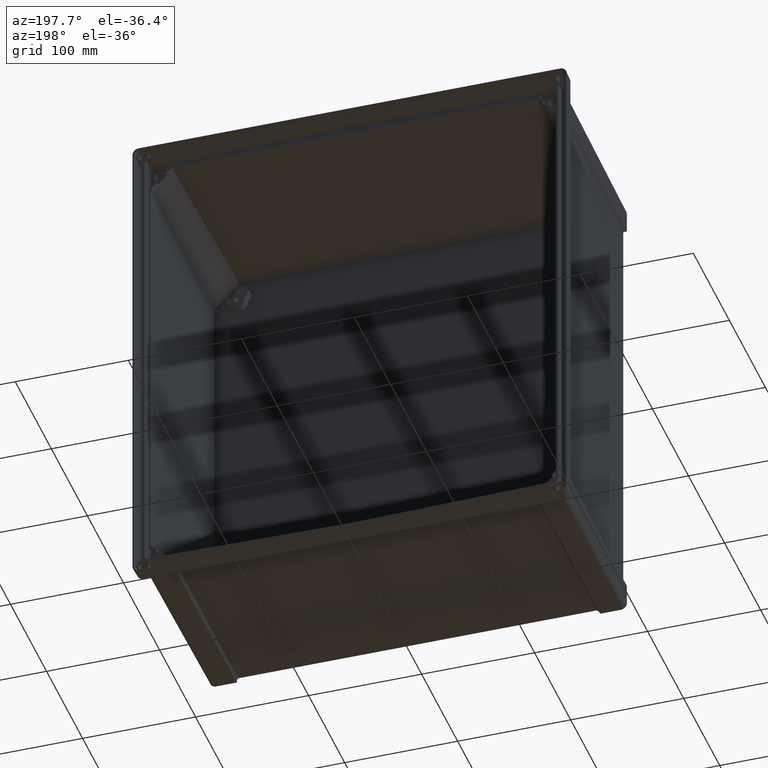
[diagram: clean part render]
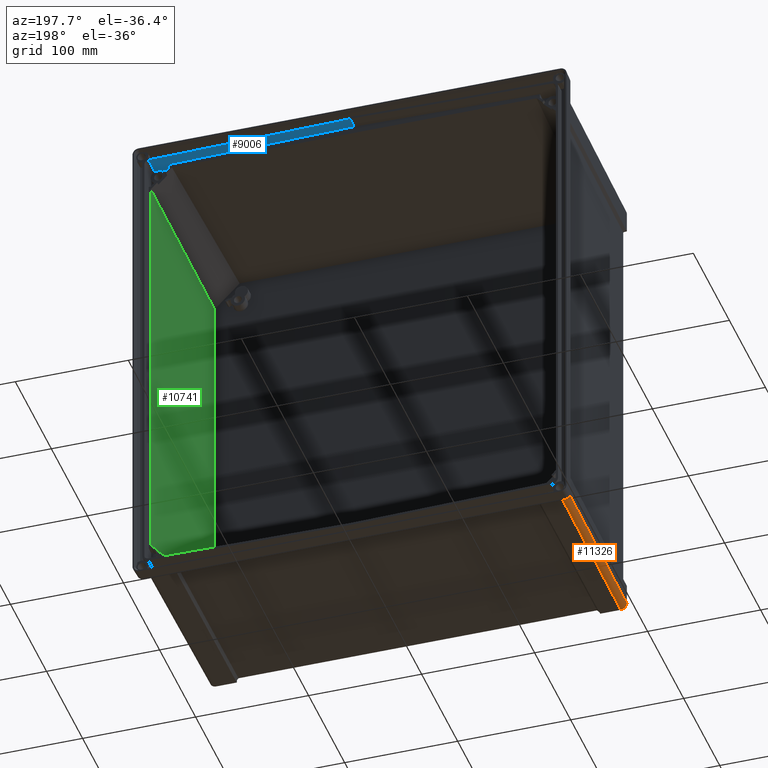
[diagram: same view with three faces highlighted in distinct colors, each labeled with its STEP entity id]
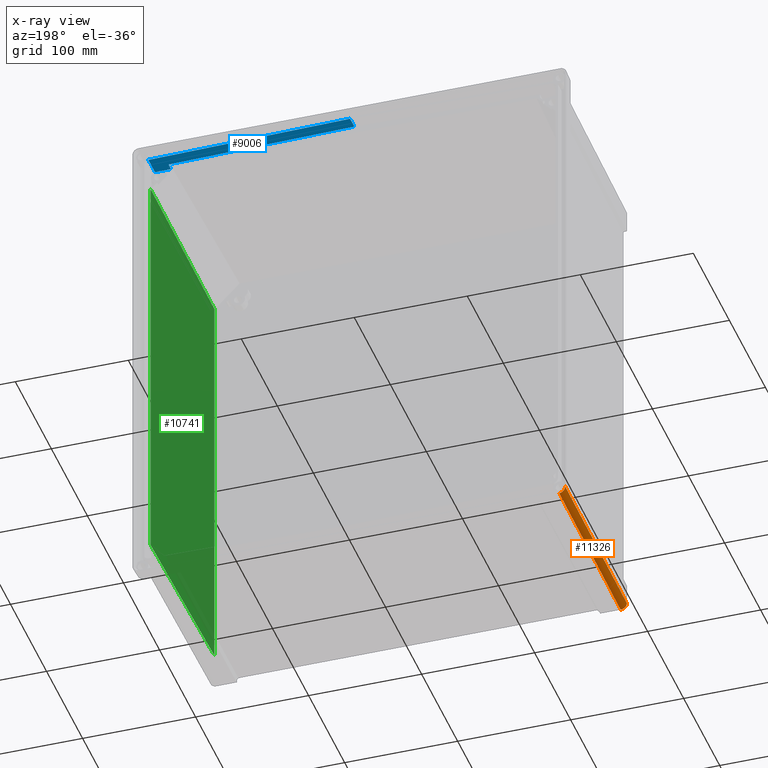
[diagram: x-ray of the same camera — body ghosted, the three highlighted faces saturated]
A machine part, auxiliary view with three faces highlighted in distinct colors.
The next image is the same camera in x-ray (body ghosted, the three faces saturated) — at least one of them is partly hidden behind the body in this view.
Their STEP definitions:

[orange] entity #11326 — the highlighted cylindrical surface (edge-blend (fillet) strip) has radius 5.5 mm, axis along (-0.0087, 0.9999, -0.0087).
#89 = CARTESIAN_POINT ( 'NONE',  ( -178.9298869279959900, -191.4000000000000100, -209.4296775048487400 ) ) ;
#1390 = CARTESIAN_POINT ( 'NONE',  ( -184.3009426615563800, -15.52207892145244400, -209.4281575681194200 ) ) ;
#1474 = FACE_OUTER_BOUND ( 'NONE', #12235, .T. ) ;
#1828 = B_SPLINE_CURVE_WITH_KNOTS ( 'NONE', 3,
 ( #11149, #6581, #1390, #8700, #2150, #3309, #11239, #3652, #2535, #6854 ),
 .UNSPECIFIED., .F., .F.,
 ( 4, 2, 2, 2, 4 ),
 ( 2.780973288783981700E-017, 0.001267848651906167300, 0.002535697303812306900, 0.003803545955718446400, 0.005071394607624586000 ),
 .UNSPECIFIED. ) ;
#2049 = CARTESIAN_POINT ( 'NONE',  ( -184.4296775048489700, -191.4000000000000100, -203.9298869279958200 ) ) ;
#2150 = CARTESIAN_POINT ( 'NONE',  ( -183.2920237207613600, -15.66403469148474800, -210.1989809831881100 ) ) ;
#2184 = CARTESIAN_POINT ( 'NONE',  ( -184.4296775048489700, -191.4000000000000100, -203.9298869279958200 ) ) ;
#2245 = DIRECTION ( 'NONE',  ( -0.008726203243944198300, 0.9999238504775704900, -0.008726203243944236400 ) ) ;
#2535 = CARTESIAN_POINT ( 'NONE',  ( -180.8882911834568600, -15.89505826412070500, -210.9612859280025500 ) ) ;
#2973 = CARTESIAN_POINT ( 'NONE',  ( -185.9675407919649200, -15.17832184595812700, -206.6776994682584000 ) ) ;
#3309 = CARTESIAN_POINT ( 'NONE',  ( -182.5378153881771100, -15.74699823450821700, -210.5734923160550500 ) ) ;
#3652 = CARTESIAN_POINT ( 'NONE',  ( -181.3095735282356600, -15.85973794767242900, -210.9125559187355900 ) ) ;
#3721 = LINE ( 'NONE', #10659, #6290 ) ;
#4432 = ORIENTED_EDGE ( 'NONE', *, *, #8310, .F. ) ;
#4693 = CARTESIAN_POINT ( 'NONE',  ( -184.8494450719406100, -15.41598042782445800, -208.7869165057000200 ) ) ;
#4995 = CARTESIAN_POINT ( 'NONE',  ( -185.5814359832609200, -15.26039095654051000, -207.8238858302422300 ) ) ;
#5213 = CARTESIAN_POINT ( 'NONE',  ( -185.9675407919649200, -15.17832184595812500, -205.4677502151118100 ) ) ;
#5340 = VERTEX_POINT ( 'NONE', #5469 ) ;
#5469 = CARTESIAN_POINT ( 'NONE',  ( -178.9298869279959900, -191.4000000000000100, -209.4296775048487400 ) ) ;
#6103 = CARTESIAN_POINT ( 'NONE',  ( -185.9675407919649200, -15.17832184595812500, -205.4677502151118100 ) ) ;
#6290 = VECTOR ( 'NONE', #8353, 1000.000000000000000 ) ;
#6540 = DIRECTION ( 'NONE',  ( 0.0000000000000000000, 0.008726535498374132400, 0.9999619230641713100 ) ) ;
#6581 = CARTESIAN_POINT ( 'NONE',  ( -184.5921602001369600, -15.47066801554474900, -209.1254087192593500 ) ) ;
#6854 = CARTESIAN_POINT ( 'NONE',  ( -180.4611737478569200, -15.93191035133308600, -210.9609643247096400 ) ) ;
#6923 =( BOUNDED_CURVE ( )  B_SPLINE_CURVE ( 3, ( #7282, #4995, #2973, #6103 ),
 .UNSPECIFIED., .F., .F. ) 
 B_SPLINE_CURVE_WITH_KNOTS ( ( 4, 4 ),
 ( 5.674198576167061200, 6.322526357496623300 ),
 .UNSPECIFIED. ) 
 CURVE ( )  GEOMETRIC_REPRESENTATION_ITEM ( )  RATIONAL_B_SPLINE_CURVE ( ( 1.000000000000000000, 0.9652782481327500900, 0.9652782481327500900, 1.000000000000000000 ) ) 
 REPRESENTATION_ITEM ( '' )  );
#6937 = ORIENTED_EDGE ( 'NONE', *, *, #12353, .F. ) ;
#7282 = CARTESIAN_POINT ( 'NONE',  ( -184.8494450719406100, -15.41598042782445800, -208.7869165057000200 ) ) ;
#7472 = AXIS2_PLACEMENT_3D ( 'NONE', #13047, #2245, #6540 ) ;
#8056 = CARTESIAN_POINT ( 'NONE',  ( -185.9790398438129300, -13.86066101692819800, -205.4792492669597800 ) ) ;
#8310 = EDGE_CURVE ( 'NONE', #9157, #10615, #6923, .T. ) ;
#8353 = DIRECTION ( 'NONE',  ( -0.008726203243944198300, 0.9999238504775704900, -0.008726203243944236400 ) ) ;
#8518 = EDGE_CURVE ( 'NONE', #9157, #10373, #1828, .T. ) ;
#8700 = CARTESIAN_POINT ( 'NONE',  ( -183.6528740278698100, -15.61861258000945300, -209.9645107338429300 ) ) ;
#8967 = EDGE_CURVE ( 'NONE', #10126, #5340, #9499, .T. ) ;
#9157 = VERTEX_POINT ( 'NONE', #4693 ) ;
#9158 = DIRECTION ( 'NONE',  ( 0.008726203243944196500, -0.9999238504775704900, 0.008726203243944236400 ) ) ;
#9223 = LINE ( 'NONE', #8056, #11770 ) ;
#9499 =( BOUNDED_CURVE ( )  B_SPLINE_CURVE ( 3, ( #2184, #13211, #11082, #89 ),
 .UNSPECIFIED., .F., .F. ) 
 B_SPLINE_CURVE_WITH_KNOTS ( ( 4, 4 ),
 ( 5.497825219993078600, 7.068545394366094700 ),
 .UNSPECIFIED. ) 
 CURVE ( )  GEOMETRIC_REPRESENTATION_ITEM ( )  RATIONAL_B_SPLINE_CURVE ( ( 1.000000000000000000, 0.8047558030806119000, 0.8047558030806119000, 1.000000000000000000 ) ) 
 REPRESENTATION_ITEM ( '' )  );
#9750 = ORIENTED_EDGE ( 'NONE', *, *, #8518, .T. ) ;
#9873 = CYLINDRICAL_SURFACE ( 'NONE', #7472, 5.499999999999988500 ) ;
#9982 = EDGE_CURVE ( 'NONE', #10615, #10126, #9223, .T. ) ;
#10126 = VERTEX_POINT ( 'NONE', #2049 ) ;
#10373 = VERTEX_POINT ( 'NONE', #10999 ) ;
#10615 = VERTEX_POINT ( 'NONE', #5213 ) ;
#10659 = CARTESIAN_POINT ( 'NONE',  ( -180.4496703296807700, -17.25007151201291600, -210.9494609065334900 ) ) ;
#10999 = CARTESIAN_POINT ( 'NONE',  ( -180.4611737478569200, -15.93191035133308600, -210.9609643247096400 ) ) ;
#11082 = CARTESIAN_POINT ( 'NONE',  ( -182.1516404672781600, -191.4000000000000100, -209.4296775048487400 ) ) ;
#11149 = CARTESIAN_POINT ( 'NONE',  ( -184.8494450719406100, -15.41598042782445800, -208.7869165057000200 ) ) ;
#11239 = CARTESIAN_POINT ( 'NONE',  ( -182.1399299418479500, -15.78523649444208100, -210.7175081007526100 ) ) ;
#11326 = ADVANCED_FACE ( 'NONE', ( #1474 ), #9873, .T. ) ;
#11471 = ORIENTED_EDGE ( 'NONE', *, *, #8967, .F. ) ;
#11770 = VECTOR ( 'NONE', #9158, 1000.000000000000000 ) ;
#12235 = EDGE_LOOP ( 'NONE', ( #11471, #12924, #4432, #9750, #6937 ) ) ;
#12353 = EDGE_CURVE ( 'NONE', #5340, #10373, #3721, .T. ) ;
#12924 = ORIENTED_EDGE ( 'NONE', *, *, #9982, .F. ) ;
#13047 = CARTESIAN_POINT ( 'NONE',  ( -180.4496703296807700, -17.20207556677186400, -205.4496703296805700 ) ) ;
#13211 = CARTESIAN_POINT ( 'NONE',  ( -184.4296775048489700, -191.4000000000000100, -207.1516404672779600 ) ) ;

[blue] entity #9006 — the highlighted planar face has unit normal (-0.0175, 0.0087, -0.9998).
#280 = DIRECTION ( 'NONE',  ( -0.008726214641665662800, -0.9999251565270831400, -0.008575227245724910400 ) ) ;
#298 = VERTEX_POINT ( 'NONE', #2554 ) ;
#306 = ORIENTED_EDGE ( 'NONE', *, *, #13622, .F. ) ;
#708 = VERTEX_POINT ( 'NONE', #4938 ) ;
#773 = VERTEX_POINT ( 'NONE', #7226 ) ;
#1502 = DIRECTION ( 'NONE',  ( 0.9998476951563911600, 0.0000000000000000000, -0.01745240643728310600 ) ) ;
#1622 = VERTEX_POINT ( 'NONE', #13571 ) ;
#2096 = EDGE_CURVE ( 'NONE', #1622, #708, #12707, .T. ) ;
#2264 = VECTOR ( 'NONE', #5421, 1000.000000000000200 ) ;
#2554 = CARTESIAN_POINT ( 'NONE',  ( 164.2512406119112700, -13.26352849845282500, 208.7943523803763500 ) ) ;
#3128 = CARTESIAN_POINT ( 'NONE',  ( -3.824454220148567700E-014, -1.700000000000000200, 211.7622972061365900 ) ) ;
#4357 = VECTOR ( 'NONE', #12790, 1000.000000000000100 ) ;
#4494 = LINE ( 'NONE', #6369, #12853 ) ;
#4631 = CARTESIAN_POINT ( 'NONE',  ( 182.0090850860459900, -13.26352849845282500, 208.4843880520951100 ) ) ;
#4704 = CARTESIAN_POINT ( 'NONE',  ( 164.3100289080814800, -20.00000000000000000, 208.7345289755732800 ) ) ;
#4938 = CARTESIAN_POINT ( 'NONE',  ( 178.4123589528109300, -20.00000000000000000, 208.4883718890033900 ) ) ;
#4956 = VERTEX_POINT ( 'NONE', #3128 ) ;
#5284 = ORIENTED_EDGE ( 'NONE', *, *, #9959, .F. ) ;
#5421 = DIRECTION ( 'NONE',  ( 0.008726191441368035300, -0.9999224980362954000, -0.008879836923226202400 ) ) ;
#5515 = CARTESIAN_POINT ( 'NONE',  ( 164.3100289080814800, -20.00000000000000000, 208.7345289755732800 ) ) ;
#5699 = CARTESIAN_POINT ( 'NONE',  ( 176.9691923812476400, -185.3705093471812100, 207.0701760489080500 ) ) ;
#5730 = AXIS2_PLACEMENT_3D ( 'NONE', #8063, #7872, #5743 ) ;
#5743 = DIRECTION ( 'NONE',  ( -0.9998476951563911600, 0.0000000000000000000, 0.01745240643728318600 ) ) ;
#5788 = PLANE ( 'NONE',  #5730 ) ;
#6240 = EDGE_CURVE ( 'NONE', #1622, #4956, #10893, .T. ) ;
#6369 = CARTESIAN_POINT ( 'NONE',  ( -3.822633532459182200E-014, -3.000000000000000000, 211.7509505498578900 ) ) ;
#6777 = EDGE_CURVE ( 'NONE', #12166, #708, #10350, .T. ) ;
#7226 = CARTESIAN_POINT ( 'NONE',  ( -4.115555944478990300E-014, -13.26352849845282500, 211.6613684497974600 ) ) ;
#7407 = VECTOR ( 'NONE', #280, 1000.000000000000100 ) ;
#7872 = DIRECTION ( 'NONE',  ( -0.01745174190312322200, 0.008726535498373953800, -0.9998096240198642800 ) ) ;
#7977 = EDGE_CURVE ( 'NONE', #4956, #773, #4494, .T. ) ;
#8063 = CARTESIAN_POINT ( 'NONE',  ( -2.601353350022389400E-014, -3.000000000000000000, 211.7509505498578900 ) ) ;
#8108 = ORIENTED_EDGE ( 'NONE', *, *, #6777, .F. ) ;
#9006 = ADVANCED_FACE ( 'NONE', ( #13507 ), #5788, .T. ) ;
#9017 = VECTOR ( 'NONE', #10277, 1000.000000000000100 ) ;
#9170 = CARTESIAN_POINT ( 'NONE',  ( -176.5743969296801800, -1.700000000000000200, 214.8444147692049700 ) ) ;
#9959 = EDGE_CURVE ( 'NONE', #773, #298, #13133, .T. ) ;
#10266 = EDGE_LOOP ( 'NONE', ( #8108, #306, #5284, #12390, #12856, #10306 ) ) ;
#10277 = DIRECTION ( 'NONE',  ( -0.9998476951563911600, -0.0000000000000000000, 0.01745240643728318600 ) ) ;
#10306 = ORIENTED_EDGE ( 'NONE', *, *, #2096, .T. ) ;
#10350 = LINE ( 'NONE', #11657, #4357 ) ;
#10893 = LINE ( 'NONE', #9170, #9017 ) ;
#11657 = CARTESIAN_POINT ( 'NONE',  ( 179.0090680064205600, -20.00000000000000000, 208.4779562937293600 ) ) ;
#11843 = DIRECTION ( 'NONE',  ( 1.323690569216124600E-023, -0.9999619114635802700, -0.008727864693204266700 ) ) ;
#12166 = VERTEX_POINT ( 'NONE', #4704 ) ;
#12390 = ORIENTED_EDGE ( 'NONE', *, *, #7977, .F. ) ;
#12707 = LINE ( 'NONE', #5699, #7407 ) ;
#12790 = DIRECTION ( 'NONE',  ( 0.9998476951563911600, -0.0000000000000000000, -0.01745240643728318600 ) ) ;
#12853 = VECTOR ( 'NONE', #11843, 1000.000000000000000 ) ;
#12856 = ORIENTED_EDGE ( 'NONE', *, *, #6240, .F. ) ;
#12961 = VECTOR ( 'NONE', #1502, 1000.000000000000100 ) ;
#13133 = LINE ( 'NONE', #4631, #12961 ) ;
#13507 = FACE_OUTER_BOUND ( 'NONE', #10266, .T. ) ;
#13552 = LINE ( 'NONE', #5515, #2264 ) ;
#13571 = CARTESIAN_POINT ( 'NONE',  ( 178.5720606333818200, -1.700000000000000200, 208.6453102934153500 ) ) ;
#13622 = EDGE_CURVE ( 'NONE', #298, #12166, #13552, .T. ) ;

[green] entity #10741 — the highlighted planar face has unit normal (1, -0.0087, 0).
#77 = DIRECTION ( 'NONE',  ( 0.008726535498373953800, 0.9999619230641713100, 0.0000000000000000000 ) ) ;
#329 = CARTESIAN_POINT ( 'NONE',  ( 121.1040441222621700, -6783.170714426400100, -5.236965176095509400 ) ) ;
#669 = CARTESIAN_POINT ( 'NONE',  ( 178.6819168607591200, -185.4000000000000100, -181.5170099140172200 ) ) ;
#2007 = DIRECTION ( 'NONE',  ( 0.008723041978589085600, 0.9995616053478232300, -0.02829320860422561400 ) ) ;
#2324 = CARTESIAN_POINT ( 'NONE',  ( 180.1841290895182200, -13.26352849845292400, -186.3894390574974700 ) ) ;
#2359 = PLANE ( 'NONE',  #3627 ) ;
#2393 = DIRECTION ( 'NONE',  ( -0.0000000000000000000, 0.0000000000000000000, 1.000000000000000000 ) ) ;
#2854 = EDGE_CURVE ( 'NONE', #8855, #6997, #8239, .T. ) ;
#3627 = AXIS2_PLACEMENT_3D ( 'NONE', #5679, #10032, #77 ) ;
#4149 = VECTOR ( 'NONE', #4747, 1000.000000000000100 ) ;
#4163 = VECTOR ( 'NONE', #7935, 1000.000000000000000 ) ;
#4747 = DIRECTION ( 'NONE',  ( 0.008723041978589085600, 0.9995616053478232300, 0.02829320860422561400 ) ) ;
#5309 = VERTEX_POINT ( 'NONE', #669 ) ;
#5495 = EDGE_CURVE ( 'NONE', #5309, #8855, #5969, .T. ) ;
#5588 = CARTESIAN_POINT ( 'NONE',  ( 180.1841290895421000, -13.26352849845392400, 186.3894390574417100 ) ) ;
#5679 = CARTESIAN_POINT ( 'NONE',  ( 180.3001218461948300, 0.02792491359479665200, -208.5000000000000300 ) ) ;
#5969 = LINE ( 'NONE', #7711, #8689 ) ;
#6102 = VERTEX_POINT ( 'NONE', #2324 ) ;
#6167 = ORIENTED_EDGE ( 'NONE', *, *, #8451, .F. ) ;
#6404 = ORIENTED_EDGE ( 'NONE', *, *, #13700, .F. ) ;
#6997 = VERTEX_POINT ( 'NONE', #5588 ) ;
#7498 = CARTESIAN_POINT ( 'NONE',  ( 178.6819168607591200, -185.4000000000000100, 181.5170099140713900 ) ) ;
#7711 = CARTESIAN_POINT ( 'NONE',  ( 178.6819168607591200, -185.4000000000000100, -208.5000000000000300 ) ) ;
#7935 = DIRECTION ( 'NONE',  ( -0.0000000000000000000, 0.0000000000000000000, 1.000000000000000000 ) ) ;
#8066 = LINE ( 'NONE', #8558, #9599 ) ;
#8239 = LINE ( 'NONE', #329, #4149 ) ;
#8451 = EDGE_CURVE ( 'NONE', #5309, #6102, #8066, .T. ) ;
#8558 = CARTESIAN_POINT ( 'NONE',  ( 170.8614570203295100, -1081.535936504703200, -156.1513287457856300 ) ) ;
#8689 = VECTOR ( 'NONE', #2393, 1000.000000000000000 ) ;
#8855 = VERTEX_POINT ( 'NONE', #7498 ) ;
#9599 = VECTOR ( 'NONE', #2007, 1000.000000000000100 ) ;
#9964 = ORIENTED_EDGE ( 'NONE', *, *, #2854, .T. ) ;
#9984 = LINE ( 'NONE', #13226, #4163 ) ;
#10032 = DIRECTION ( 'NONE',  ( 0.9999619230641713100, -0.008726535498373953800, 0.0000000000000000000 ) ) ;
#10252 = EDGE_LOOP ( 'NONE', ( #9964, #6404, #6167, #12167 ) ) ;
#10741 = ADVANCED_FACE ( 'NONE', ( #13451 ), #2359, .F. ) ;
#12167 = ORIENTED_EDGE ( 'NONE', *, *, #5495, .T. ) ;
#13226 = CARTESIAN_POINT ( 'NONE',  ( 180.1841290895208400, -13.26352849845282500, -208.5000000000000300 ) ) ;
#13451 = FACE_OUTER_BOUND ( 'NONE', #10252, .T. ) ;
#13700 = EDGE_CURVE ( 'NONE', #6102, #6997, #9984, .T. ) ;